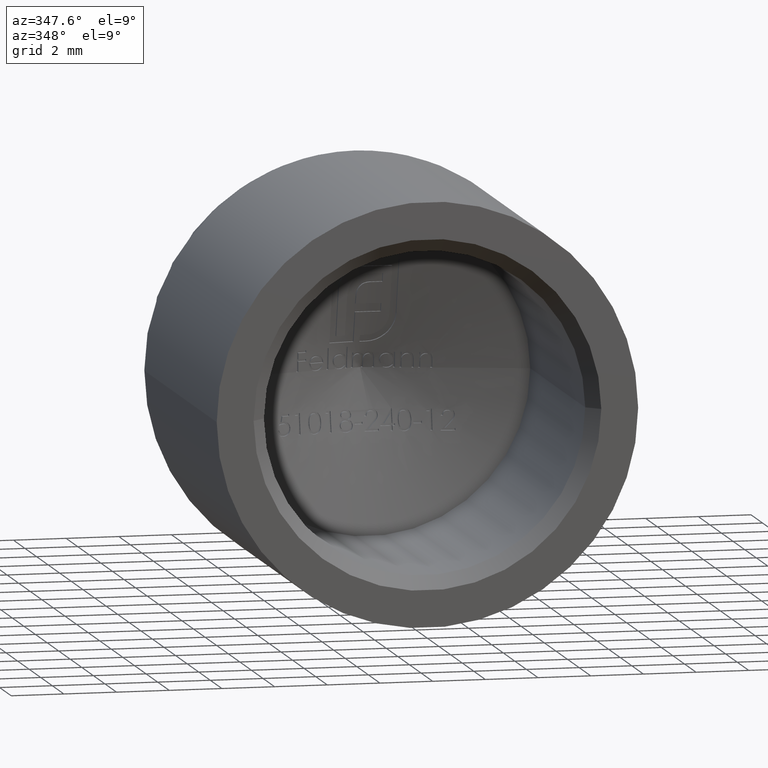
[diagram: clean part render]
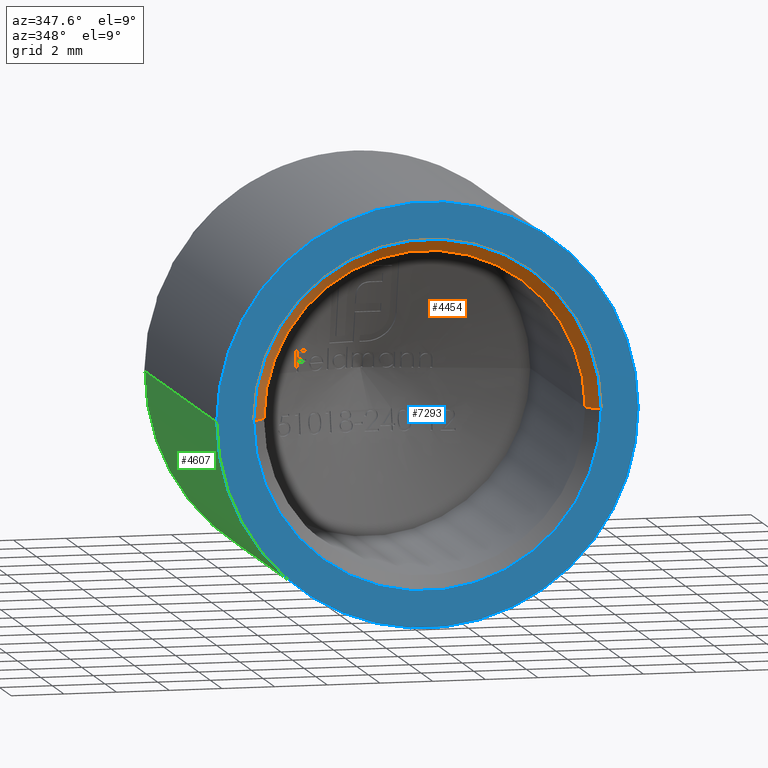
[diagram: same view with three faces highlighted in distinct colors, each labeled with its STEP entity id]
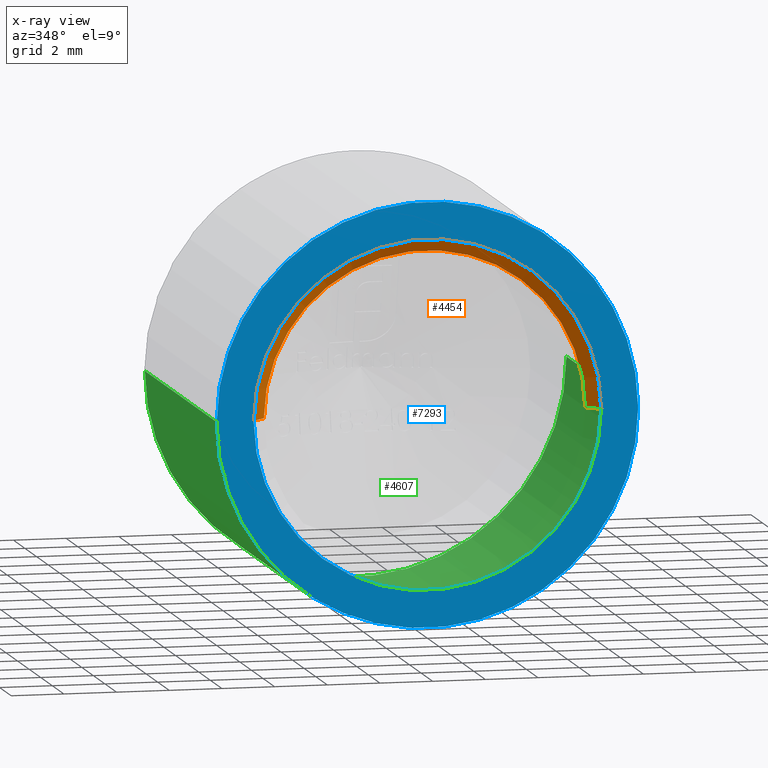
[diagram: x-ray of the same camera — body ghosted, the three highlighted faces saturated]
A machine part, auxiliary view with three faces highlighted in distinct colors.
The next image is the same camera in x-ray (body ghosted, the three faces saturated) — at least one of them is partly hidden behind the body in this view.
Their STEP definitions:

[orange] entity #4454 — the highlighted conical surface has half-angle 45 deg.
#278 = CARTESIAN_POINT ( 'NONE',  ( -6.600000000000001421, -2.543256140501903027E-16, 8.082668874372533978E-16 ) ) ;
#304 = FACE_OUTER_BOUND ( 'NONE', #4499, .T. ) ;
#382 = EDGE_CURVE ( 'NONE', #8572, #13173, #8005, .T. ) ;
#587 = CARTESIAN_POINT ( 'NONE',  ( 6.099999999999999645, 0.4999999999999987232, 0.000000000000000000 ) ) ;
#713 = AXIS2_PLACEMENT_3D ( 'NONE', #12696, #2625, #10422 ) ;
#962 = CARTESIAN_POINT ( 'NONE',  ( -6.099999999999999645, 0.4999999999999987232, 7.470345474798854293E-16 ) ) ;
#1229 = DIRECTION ( 'NONE',  ( -0.7071067811865500152, -0.7071067811865450192, 8.659560562354963673E-17 ) ) ;
#1592 = ORIENTED_EDGE ( 'NONE', *, *, #382, .F. ) ;
#1831 = ORIENTED_EDGE ( 'NONE', *, *, #10182, .F. ) ;
#2625 = DIRECTION ( 'NONE',  ( -2.201345846305856848E-18, 1.000000000000000000, 0.000000000000000000 ) ) ;
#3390 = CARTESIAN_POINT ( 'NONE',  ( -6.099999999999999645, 0.4999999999999987232, 7.470345474798854293E-16 ) ) ;
#4246 = VECTOR ( 'NONE', #1229, 1000.000000000000000 ) ;
#4277 = ORIENTED_EDGE ( 'NONE', *, *, #7335, .F. ) ;
#4454 = ADVANCED_FACE ( 'NONE', ( #304 ), #6690, .F. ) ;
#4478 = DIRECTION ( 'NONE',  ( 1.000000000000000000, 0.000000000000000000, 0.000000000000000000 ) ) ;
#4499 = EDGE_LOOP ( 'NONE', ( #4277, #1592, #8677, #1831 ) ) ;
#4823 = AXIS2_PLACEMENT_3D ( 'NONE', #12418, #13618, #10246 ) ;
#5070 = AXIS2_PLACEMENT_3D ( 'NONE', #6641, #12091, #4478 ) ;
#5672 = VECTOR ( 'NONE', #9394, 1000.000000000000000 ) ;
#5862 = EDGE_CURVE ( 'NONE', #8572, #10062, #8652, .T. ) ;
#6641 = CARTESIAN_POINT ( 'NONE',  ( 3.191951477143492738E-17, 0.4999999999999987232, 0.000000000000000000 ) ) ;
#6690 = CONICAL_SURFACE ( 'NONE', #4823, 6.099999999999999645, 0.7853981633974518317 ) ;
#7335 = EDGE_CURVE ( 'NONE', #13173, #10204, #14112, .T. ) ;
#8005 = CIRCLE ( 'NONE', #5070, 6.099999999999999645 ) ;
#8572 = VERTEX_POINT ( 'NONE', #587 ) ;
#8652 = LINE ( 'NONE', #11676, #5672 ) ;
#8677 = ORIENTED_EDGE ( 'NONE', *, *, #5862, .T. ) ;
#9394 = DIRECTION ( 'NONE',  ( 0.7071067811865500152, -0.7071067811865450192, 0.000000000000000000 ) ) ;
#10029 = CARTESIAN_POINT ( 'NONE',  ( 6.600000000000001421, -2.543256140501903027E-16, 0.000000000000000000 ) ) ;
#10062 = VERTEX_POINT ( 'NONE', #10029 ) ;
#10182 = EDGE_CURVE ( 'NONE', #10204, #10062, #13761, .T. ) ;
#10204 = VERTEX_POINT ( 'NONE', #278 ) ;
#10246 = DIRECTION ( 'NONE',  ( 1.000000000000000000, 0.000000000000000000, 0.000000000000000000 ) ) ;
#10422 = DIRECTION ( 'NONE',  ( 1.000000000000000000, 2.201345846305852997E-18, 0.000000000000000000 ) ) ;
#11676 = CARTESIAN_POINT ( 'NONE',  ( 6.099999999999999645, 0.4999999999999987232, 0.000000000000000000 ) ) ;
#12091 = DIRECTION ( 'NONE',  ( 2.201345846305856848E-18, -1.000000000000000000, 0.000000000000000000 ) ) ;
#12418 = CARTESIAN_POINT ( 'NONE',  ( 3.191951477143492738E-17, 0.4999999999999987232, 0.000000000000000000 ) ) ;
#12696 = CARTESIAN_POINT ( 'NONE',  ( 3.302018769458785273E-17, -2.543256140501903027E-16, 0.000000000000000000 ) ) ;
#13173 = VERTEX_POINT ( 'NONE', #962 ) ;
#13618 = DIRECTION ( 'NONE',  ( 2.201345846305856848E-18, -1.000000000000000000, 0.000000000000000000 ) ) ;
#13761 = CIRCLE ( 'NONE', #713, 6.600000000000001421 ) ;
#14112 = LINE ( 'NONE', #3390, #4246 ) ;

[blue] entity #7293 — the highlighted planar face has unit normal (0, -1, -0).
#278 = CARTESIAN_POINT ( 'NONE',  ( -6.600000000000001421, -2.543256140501903027E-16, 8.082668874372533978E-16 ) ) ;
#713 = AXIS2_PLACEMENT_3D ( 'NONE', #12696, #2625, #10422 ) ;
#1735 = CARTESIAN_POINT ( 'NONE',  ( -8.000000000000000000, -1.761076677044685479E-17, 9.797174393178825657E-16 ) ) ;
#2201 = PLANE ( 'NONE',  #7275 ) ;
#2625 = DIRECTION ( 'NONE',  ( -2.201345846305856848E-18, 1.000000000000000000, 0.000000000000000000 ) ) ;
#2739 = EDGE_CURVE ( 'NONE', #10062, #10204, #9884, .T. ) ;
#3074 = AXIS2_PLACEMENT_3D ( 'NONE', #11680, #4096, #11856 ) ;
#3228 = CARTESIAN_POINT ( 'NONE',  ( 3.302018769458785273E-17, 0.000000000000000000, 0.000000000000000000 ) ) ;
#3392 = FACE_OUTER_BOUND ( 'NONE', #11367, .T. ) ;
#3457 = ORIENTED_EDGE ( 'NONE', *, *, #2739, .T. ) ;
#4006 = DIRECTION ( 'NONE',  ( 1.000000000000000000, 2.201345846305852997E-18, 0.000000000000000000 ) ) ;
#4096 = DIRECTION ( 'NONE',  ( 2.201345846305856848E-18, -1.000000000000000000, -0.000000000000000000 ) ) ;
#4333 = EDGE_CURVE ( 'NONE', #12646, #4561, #12053, .T. ) ;
#4561 = VERTEX_POINT ( 'NONE', #1735 ) ;
#5510 = DIRECTION ( 'NONE',  ( 2.201345846305856848E-18, -1.000000000000000000, -0.000000000000000000 ) ) ;
#6360 = FACE_BOUND ( 'NONE', #11913, .T. ) ;
#6826 = EDGE_CURVE ( 'NONE', #4561, #12646, #8790, .T. ) ;
#7275 = AXIS2_PLACEMENT_3D ( 'NONE', #7619, #5510, #9841 ) ;
#7293 = ADVANCED_FACE ( 'NONE', ( #6360, #3392 ), #2201, .T. ) ;
#7619 = CARTESIAN_POINT ( 'NONE',  ( 8.000000000000000000, -2.367148472797433986E-16, 0.000000000000000000 ) ) ;
#8359 = CARTESIAN_POINT ( 'NONE',  ( 8.000000000000000000, 1.761076677044685479E-17, 0.000000000000000000 ) ) ;
#8790 = CIRCLE ( 'NONE', #3074, 8.000000000000000000 ) ;
#9578 = AXIS2_PLACEMENT_3D ( 'NONE', #3228, #14274, #14221 ) ;
#9841 = DIRECTION ( 'NONE',  ( 1.000000000000000000, 2.201345846305856848E-18, 0.000000000000000000 ) ) ;
#9884 = CIRCLE ( 'NONE', #10934, 6.600000000000001421 ) ;
#10029 = CARTESIAN_POINT ( 'NONE',  ( 6.600000000000001421, -2.543256140501903027E-16, 0.000000000000000000 ) ) ;
#10062 = VERTEX_POINT ( 'NONE', #10029 ) ;
#10182 = EDGE_CURVE ( 'NONE', #10204, #10062, #13761, .T. ) ;
#10204 = VERTEX_POINT ( 'NONE', #278 ) ;
#10415 = CARTESIAN_POINT ( 'NONE',  ( 3.302018769458785273E-17, -2.543256140501903027E-16, 0.000000000000000000 ) ) ;
#10422 = DIRECTION ( 'NONE',  ( 1.000000000000000000, 2.201345846305852997E-18, 0.000000000000000000 ) ) ;
#10934 = AXIS2_PLACEMENT_3D ( 'NONE', #10415, #11544, #4006 ) ;
#10999 = ORIENTED_EDGE ( 'NONE', *, *, #6826, .T. ) ;
#11367 = EDGE_LOOP ( 'NONE', ( #14068, #10999 ) ) ;
#11544 = DIRECTION ( 'NONE',  ( -2.201345846305856848E-18, 1.000000000000000000, 0.000000000000000000 ) ) ;
#11680 = CARTESIAN_POINT ( 'NONE',  ( 3.302018769458785273E-17, 0.000000000000000000, 0.000000000000000000 ) ) ;
#11856 = DIRECTION ( 'NONE',  ( 1.000000000000000000, 2.201345846305856848E-18, 0.000000000000000000 ) ) ;
#11913 = EDGE_LOOP ( 'NONE', ( #3457, #11992 ) ) ;
#11992 = ORIENTED_EDGE ( 'NONE', *, *, #10182, .T. ) ;
#12053 = CIRCLE ( 'NONE', #9578, 8.000000000000000000 ) ;
#12646 = VERTEX_POINT ( 'NONE', #8359 ) ;
#12696 = CARTESIAN_POINT ( 'NONE',  ( 3.302018769458785273E-17, -2.543256140501903027E-16, 0.000000000000000000 ) ) ;
#13761 = CIRCLE ( 'NONE', #713, 6.600000000000001421 ) ;
#14068 = ORIENTED_EDGE ( 'NONE', *, *, #4333, .T. ) ;
#14221 = DIRECTION ( 'NONE',  ( 1.000000000000000000, 2.201345846305856848E-18, 0.000000000000000000 ) ) ;
#14274 = DIRECTION ( 'NONE',  ( 2.201345846305856848E-18, -1.000000000000000000, -0.000000000000000000 ) ) ;

[green] entity #4607 — the highlighted cylindrical surface (partial cylindrical patch) has radius 8 mm, axis along (0, -1, -0).
#126 = AXIS2_PLACEMENT_3D ( 'NONE', #12172, #1012, #8753 ) ;
#471 = VERTEX_POINT ( 'NONE', #3380 ) ;
#1012 = DIRECTION ( 'NONE',  ( 2.201345846305857234E-18, -1.000000000000000000, -0.000000000000000000 ) ) ;
#1735 = CARTESIAN_POINT ( 'NONE',  ( -8.000000000000000000, -1.761076677044685479E-17, 9.797174393178825657E-16 ) ) ;
#2522 = CARTESIAN_POINT ( 'NONE',  ( -8.000000000000000000, 11.63449007382982181, 9.797174393178825657E-16 ) ) ;
#2648 = VECTOR ( 'NONE', #8198, 1000.000000000000000 ) ;
#3074 = AXIS2_PLACEMENT_3D ( 'NONE', #11680, #4096, #11856 ) ;
#3380 = CARTESIAN_POINT ( 'NONE',  ( 8.000000000000000000, 12.38749456993815556, 0.000000000000000000 ) ) ;
#3926 = DIRECTION ( 'NONE',  ( 2.201345846305856848E-18, -1.000000000000000000, -0.000000000000000000 ) ) ;
#4096 = DIRECTION ( 'NONE',  ( 2.201345846305856848E-18, -1.000000000000000000, -0.000000000000000000 ) ) ;
#4561 = VERTEX_POINT ( 'NONE', #1735 ) ;
#4607 = ADVANCED_FACE ( 'NONE', ( #8601 ), #6755, .T. ) ;
#4985 = CARTESIAN_POINT ( 'NONE',  ( 7.408651296675851309E-18, 11.63449007382982181, 0.000000000000000000 ) ) ;
#5024 = CARTESIAN_POINT ( 'NONE',  ( -8.000000000000000000, 12.38749456993815556, 9.797174393178825657E-16 ) ) ;
#5185 = DIRECTION ( 'NONE',  ( 1.000000000000000000, 0.000000000000000000, 0.000000000000000000 ) ) ;
#5479 = CIRCLE ( 'NONE', #126, 8.000000000000000000 ) ;
#6020 = EDGE_CURVE ( 'NONE', #12673, #471, #5479, .T. ) ;
#6755 = CYLINDRICAL_SURFACE ( 'NONE', #9921, 8.000000000000000000 ) ;
#6826 = EDGE_CURVE ( 'NONE', #4561, #12646, #8790, .T. ) ;
#7108 = ORIENTED_EDGE ( 'NONE', *, *, #6020, .T. ) ;
#7217 = EDGE_LOOP ( 'NONE', ( #13834, #7108, #14276, #12797 ) ) ;
#8024 = EDGE_CURVE ( 'NONE', #471, #12646, #12929, .T. ) ;
#8198 = DIRECTION ( 'NONE',  ( 2.201345846305856848E-18, -1.000000000000000000, -0.000000000000000000 ) ) ;
#8359 = CARTESIAN_POINT ( 'NONE',  ( 8.000000000000000000, 1.761076677044685479E-17, 0.000000000000000000 ) ) ;
#8465 = CARTESIAN_POINT ( 'NONE',  ( 8.000000000000000000, 11.63449007382982181, 0.000000000000000000 ) ) ;
#8601 = FACE_OUTER_BOUND ( 'NONE', #7217, .T. ) ;
#8753 = DIRECTION ( 'NONE',  ( 1.000000000000000000, 0.000000000000000000, 0.000000000000000000 ) ) ;
#8790 = CIRCLE ( 'NONE', #3074, 8.000000000000000000 ) ;
#8952 = VECTOR ( 'NONE', #13070, 1000.000000000000000 ) ;
#9921 = AXIS2_PLACEMENT_3D ( 'NONE', #4985, #3926, #5185 ) ;
#11680 = CARTESIAN_POINT ( 'NONE',  ( 3.302018769458785273E-17, 0.000000000000000000, 0.000000000000000000 ) ) ;
#11856 = DIRECTION ( 'NONE',  ( 1.000000000000000000, 2.201345846305856848E-18, 0.000000000000000000 ) ) ;
#12172 = CARTESIAN_POINT ( 'NONE',  ( 5.751027976918133163E-18, 12.38749456993815556, 0.000000000000000000 ) ) ;
#12646 = VERTEX_POINT ( 'NONE', #8359 ) ;
#12673 = VERTEX_POINT ( 'NONE', #5024 ) ;
#12797 = ORIENTED_EDGE ( 'NONE', *, *, #6826, .F. ) ;
#12929 = LINE ( 'NONE', #8465, #8952 ) ;
#13070 = DIRECTION ( 'NONE',  ( 2.201345846305856848E-18, -1.000000000000000000, -0.000000000000000000 ) ) ;
#13547 = LINE ( 'NONE', #2522, #2648 ) ;
#13834 = ORIENTED_EDGE ( 'NONE', *, *, #13973, .F. ) ;
#13973 = EDGE_CURVE ( 'NONE', #12673, #4561, #13547, .T. ) ;
#14276 = ORIENTED_EDGE ( 'NONE', *, *, #8024, .T. ) ;